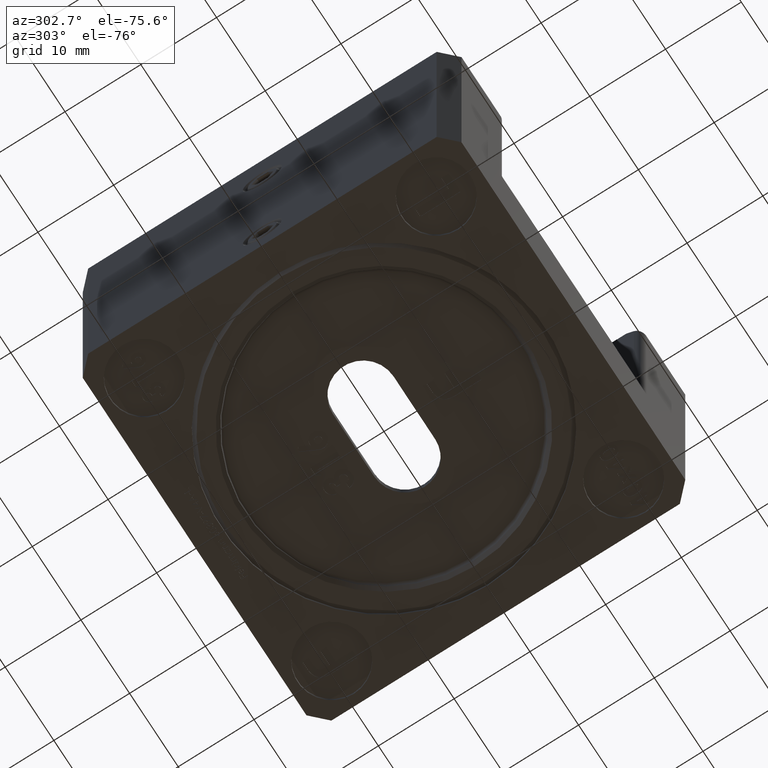
[diagram: clean part render]
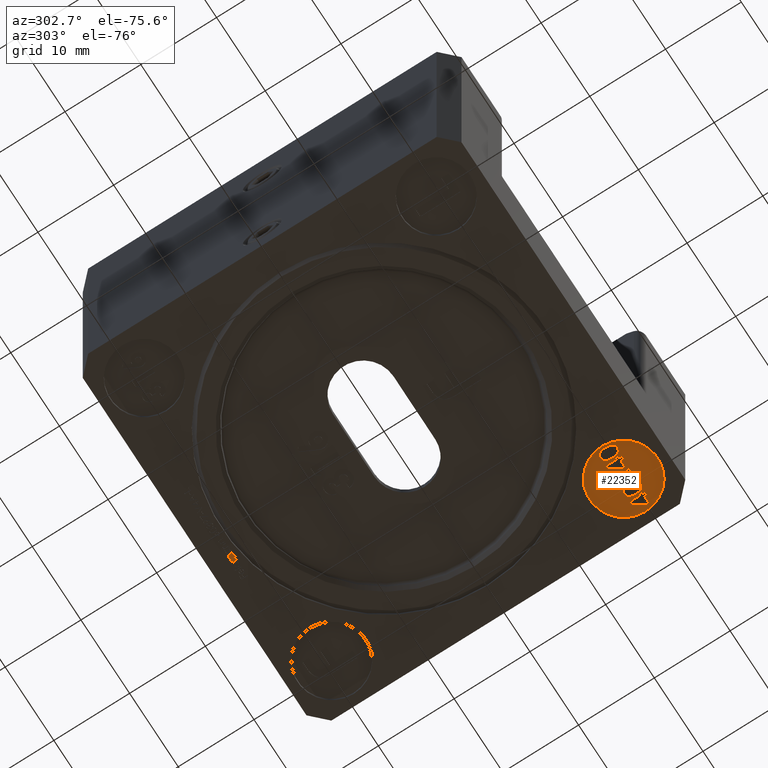
[diagram: same view with one face highlighted and labeled with its STEP entity id]
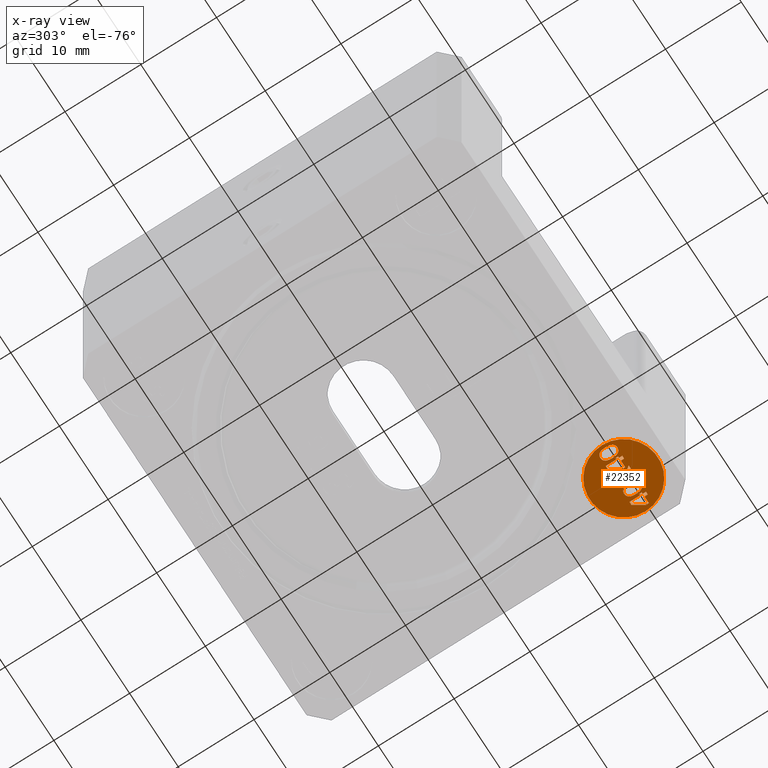
[diagram: x-ray of the same camera — body ghosted, the highlighted face saturated]
A machine part, auxiliary view. The second image highlights one B-rep face of the part: STEP entity #22352.
The next image is the same camera in x-ray: the body ghosted, the highlighted face saturated — about 0% of this face is hidden behind the body in this view.
In plain terms, the highlighted planar face has unit normal (0, 0, 1).
Its self-contained STEP definition (entity closure, byte-faithful):
#5 = EDGE_CURVE ( 'NONE', #15874, #13389, #23402, .T. ) ;
#10 = DIRECTION ( 'NONE',  ( -1.000000000000000000, 0.0000000000000000000, 0.0000000000000000000 ) ) ;
#45 = EDGE_CURVE ( 'NONE', #19678, #11450, #12199, .T. ) ;
#110 = LINE ( 'NONE', #23233, #15642 ) ;
#175 = ORIENTED_EDGE ( 'NONE', *, *, #7692, .T. ) ;
#193 = DIRECTION ( 'NONE',  ( 0.0000000000000000000, -0.0000000000000000000, 1.000000000000000000 ) ) ;
#261 = CARTESIAN_POINT ( 'NONE',  ( 15.52910355641901500, -20.46322539094386500, -19.49999999999999600 ) ) ;
#303 = CARTESIAN_POINT ( 'NONE',  ( 21.24240997873373300, -18.50919335267314000, -19.49999999999999600 ) ) ;
#325 = CARTESIAN_POINT ( 'NONE',  ( 21.47896937287810500, -18.98094877751632800, -19.50000000000000700 ) ) ;
#345 = CARTESIAN_POINT ( 'NONE',  ( 15.28710693920035100, -20.11703400478227600, -19.50000000000000000 ) ) ;
#375 = EDGE_CURVE ( 'NONE', #1966, #18803, #14157, .T. ) ;
#400 = FACE_BOUND ( 'NONE', #1970, .T. ) ;
#419 = ORIENTED_EDGE ( 'NONE', *, *, #21974, .T. ) ;
#491 = CARTESIAN_POINT ( 'NONE',  ( 20.08335727802703700, -19.56184725141307400, -19.49999999999999300 ) ) ;
#543 = VERTEX_POINT ( 'NONE', #17945 ) ;
#593 = ORIENTED_EDGE ( 'NONE', *, *, #45, .T. ) ;
#639 = DIRECTION ( 'NONE',  ( 1.000000000000000000, 0.0000000000000000000, 0.0000000000000000000 ) ) ;
#640 = LINE ( 'NONE', #8239, #20701 ) ;
#751 = EDGE_CURVE ( 'NONE', #8232, #26117, #11863, .T. ) ;
#958 = DIRECTION ( 'NONE',  ( 0.5854434189713906300, -0.8107132681676603200, 0.0000000000000000000 ) ) ;
#994 = CARTESIAN_POINT ( 'NONE',  ( 16.07503073512302500, -20.55778421158914100, -19.50000000000000000 ) ) ;
#1134 = DIRECTION ( 'NONE',  ( 0.5871477628563347400, 0.8094797740356464200, 0.0000000000000000000 ) ) ;
#1182 = CARTESIAN_POINT ( 'NONE',  ( 21.38413446056864200, -20.23077924696335500, -19.50000000000000000 ) ) ;
#1195 = EDGE_LOOP ( 'NONE', ( #17175, #2738, #18042, #15343, #1265 ) ) ;
#1225 = VECTOR ( 'NONE', #15415, 1000.000000000000000 ) ;
#1265 = ORIENTED_EDGE ( 'NONE', *, *, #21322, .T. ) ;
#1300 = CARTESIAN_POINT ( 'NONE',  ( 20.27735147361582000, -18.60565923297978200, -19.50000000000000700 ) ) ;
#1336 = CARTESIAN_POINT ( 'NONE',  ( 16.63639483006850400, -19.48110302985475100, -19.50000000000000000 ) ) ;
#1354 = CARTESIAN_POINT ( 'NONE',  ( 16.33972850136605700, -20.43295262523233200, -19.50000000000000400 ) ) ;
#1368 = LINE ( 'NONE', #8075, #11763 ) ;
#1423 = CARTESIAN_POINT ( 'NONE',  ( 16.44611498890099100, -18.61272788401655000, -19.50000000000000000 ) ) ;
#1425 = LINE ( 'NONE', #15846, #5661 ) ;
#1577 = EDGE_CURVE ( 'NONE', #13566, #14762, #8308, .T. ) ;
#1578 = CARTESIAN_POINT ( 'NONE',  ( 20.13179801612807300, -18.93949156992432800, -19.49999999999999600 ) ) ;
#1666 = VECTOR ( 'NONE', #12723, 1000.000000000000100 ) ;
#1847 = EDGE_CURVE ( 'NONE', #18803, #19678, #5714, .T. ) ;
#1880 = VERTEX_POINT ( 'NONE', #24456 ) ;
#1900 = EDGE_CURVE ( 'NONE', #26128, #7818, #5998, .T. ) ;
#1966 = VERTEX_POINT ( 'NONE', #2173 ) ;
#1970 = EDGE_LOOP ( 'NONE', ( #23081, #19459, #17067, #3975, #26082, #15213, #13651, #6506, #13895, #16426, #22318, #8326 ) ) ;
#2011 = EDGE_CURVE ( 'NONE', #16760, #11055, #8236, .T. ) ;
#2086 = ORIENTED_EDGE ( 'NONE', *, *, #17810, .T. ) ;
#2106 = ORIENTED_EDGE ( 'NONE', *, *, #22862, .T. ) ;
#2136 = CARTESIAN_POINT ( 'NONE',  ( 18.29173671041038700, -19.69989309395731800, -19.50000000000000000 ) ) ;
#2173 = CARTESIAN_POINT ( 'NONE',  ( 20.08276235143602100, -19.46117447750432600, -19.50000000000000000 ) ) ;
#2194 = EDGE_CURVE ( 'NONE', #8599, #1880, #25334, .T. ) ;
#2200 = AXIS2_PLACEMENT_3D ( 'NONE', #20542, #193, #14669 ) ;
#2345 = CARTESIAN_POINT ( 'NONE',  ( 15.42377719439625700, -20.36246280700410300, -19.50000000000000400 ) ) ;
#2352 = LINE ( 'NONE', #25166, #23005 ) ;
#2369 = CARTESIAN_POINT ( 'NONE',  ( 17.01630935998303700, -20.08447175314535100, -19.50000000000000000 ) ) ;
#2386 = EDGE_CURVE ( 'NONE', #7511, #10082, #4989, .T. ) ;
#2415 = CARTESIAN_POINT ( 'NONE',  ( 17.01630935998303700, -20.51865978733338400, -19.50000000000000000 ) ) ;
#2431 = CARTESIAN_POINT ( 'NONE',  ( 15.80236314100839600, -20.56694489684956700, -19.50000000000000000 ) ) ;
#2507 = CARTESIAN_POINT ( 'NONE',  ( 21.36129998182570200, -18.65892949933821000, -19.50000000000000400 ) ) ;
#2540 = DIRECTION ( 'NONE',  ( 1.000000000000000000, 0.0000000000000000000, 0.0000000000000000000 ) ) ;
#2549 = ORIENTED_EDGE ( 'NONE', *, *, #16834, .T. ) ;
#2576 = DIRECTION ( 'NONE',  ( 0.0000000000000000000, -1.000000000000000000, 0.0000000000000000000 ) ) ;
#2580 = CARTESIAN_POINT ( 'NONE',  ( 20.09487665737982800, -19.74949818848065400, -19.49999999999999600 ) ) ;
#2601 = CARTESIAN_POINT ( 'NONE',  ( 18.77468609609414000, -20.51865978733338000, -19.50000000000000000 ) ) ;
#2738 = ORIENTED_EDGE ( 'NONE', *, *, #3068, .T. ) ;
#2862 = LINE ( 'NONE', #11278, #11626 ) ;
#2871 = CARTESIAN_POINT ( 'NONE',  ( 16.63639483006850400, -19.48110302985475100, -19.50000000000000000 ) ) ;
#2895 = CIRCLE ( 'NONE', #21420, 4.500000000000000900 ) ;
#2944 = CARTESIAN_POINT ( 'NONE',  ( 20.22057979208317100, -20.22704167294330400, -19.49999999999999600 ) ) ;
#2975 = VECTOR ( 'NONE', #10273, 1000.000000000000000 ) ;
#2983 = VECTOR ( 'NONE', #13410, 1000.000000000000000 ) ;
#3011 = FACE_OUTER_BOUND ( 'NONE', #12757, .T. ) ;
#3030 = CARTESIAN_POINT ( 'NONE',  ( 20.58584862693198000, -20.54632261778430200, -19.50000000000000000 ) ) ;
#3046 = CARTESIAN_POINT ( 'NONE',  ( 19.37593476062405200, -19.68971681190603100, -19.50000000000000000 ) ) ;
#3068 = EDGE_CURVE ( 'NONE', #1880, #16760, #4046, .T. ) ;
#3093 = CARTESIAN_POINT ( 'NONE',  ( 16.56917997216510200, -20.06414337582947000, -19.50000000000000000 ) ) ;
#3123 = CARTESIAN_POINT ( 'NONE',  ( 20.79722215378645000, -20.57293329160689100, -19.50000000000000000 ) ) ;
#3202 = CARTESIAN_POINT ( 'NONE',  ( 20.68697852562377500, -20.56694489684956700, -19.50000000000000000 ) ) ;
#3264 = CARTESIAN_POINT ( 'NONE',  ( 16.47195787137613700, -20.27842571724331600, -19.50000000000000000 ) ) ;
#3267 = VECTOR ( 'NONE', #639, 1000.000000000000000 ) ;
#3305 = EDGE_CURVE ( 'NONE', #16575, #24175, #110, .T. ) ;
#3332 = CARTESIAN_POINT ( 'NONE',  ( 16.23164557394070700, -18.41831360031966400, -19.50000000000000400 ) ) ;
#3358 = CARTESIAN_POINT ( 'NONE',  ( 16.02313648151300600, -20.56698238870416900, -19.50000000000000400 ) ) ;
#3363 = CARTESIAN_POINT ( 'NONE',  ( 21.40939803564531000, -20.17941704777196700, -19.50000000000000000 ) ) ;
#3382 = CARTESIAN_POINT ( 'NONE',  ( 21.34716539630781500, -18.63562359609406700, -19.50000000000000000 ) ) ;
#3414 = CARTESIAN_POINT ( 'NONE',  ( 15.92363107472662500, -18.34771961639321300, -19.50000000000000000 ) ) ;
#3432 = CARTESIAN_POINT ( 'NONE',  ( 19.16223283754713000, -19.39333259716244100, -19.50000000000000000 ) ) ;
#3443 = CARTESIAN_POINT ( 'NONE',  ( 16.52478265102993000, -20.17941704777196700, -19.50000000000000000 ) ) ;
#3570 = CARTESIAN_POINT ( 'NONE',  ( 20.64914468513039500, -18.36312624442890500, -19.50000000000000400 ) ) ;
#3606 = CARTESIAN_POINT ( 'NONE',  ( 15.92363107472662500, -18.34771961639321300, -19.50000000000000000 ) ) ;
#3676 = CARTESIAN_POINT ( 'NONE',  ( 20.21928028386401300, -18.70030822879435200, -19.50000000000000400 ) ) ;
#3727 = CARTESIAN_POINT ( 'NONE',  ( 17.39622388989756600, -20.08447175314535100, -19.50000000000000000 ) ) ;
#3759 = CARTESIAN_POINT ( 'NONE',  ( 20.17035098681002500, -18.81031918212441700, -19.50000000000000400 ) ) ;
#3792 = CARTESIAN_POINT ( 'NONE',  ( 15.19833401722315000, -19.42738942355059400, -19.49999999999999600 ) ) ;
#3975 = ORIENTED_EDGE ( 'NONE', *, *, #11671, .T. ) ;
#3984 = VECTOR ( 'NONE', #22603, 1000.000000000000000 ) ;
#4046 = B_SPLINE_CURVE_WITH_KNOTS ( 'NONE', 3,
 ( #3606, #11958, #5801, #14275, #26404, #24247, #16182, #18436, #26321, #22193, #10055, #5711, #7819, #8105, #18353, #6076, #16451, #7916, #18264, #9877, #12145, #14017, #12322, #24517, #22373, #3792, #24611 ),
 .UNSPECIFIED., .F., .F.,
 ( 4, 1, 1, 1, 1, 1, 1, 1, 1, 1, 1, 1, 1, 1, 1, 1, 1, 1, 1, 1, 1, 1, 1, 1, 4 ),
 ( 0.0000000000000000000, 0.03663489025512752700, 0.07203398234779112600, 0.1066259706074960400, 0.1403056939382987300, 0.1736194704926825600, 0.2064256725696826400, 0.2390670061327428400, 0.2718828805625953000, 0.3048398888131207400, 0.3385290337045881400, 0.3726161878593857700, 0.4075482500265407100, 0.4437189059571700600, 0.4813115090919059500, 0.5201129981462014900, 0.5609129028334468600, 0.6040246006136030800, 0.6500745638656786300, 0.6995722277770585200, 0.7523625390892957300, 0.8087887173463876900, 0.8689542125204782200, 0.9326747199379369400, 1.000000000000000000 ),
 .UNSPECIFIED. ) ;
#4132 = VERTEX_POINT ( 'NONE', #3432 ) ;
#4177 = VECTOR ( 'NONE', #2576, 1000.000000000000000 ) ;
#4258 = EDGE_CURVE ( 'NONE', #21731, #26486, #5259, .T. ) ;
#4303 = CARTESIAN_POINT ( 'NONE',  ( 21.33073037351637400, -18.61272788401655000, -19.50000000000000000 ) ) ;
#4396 = CARTESIAN_POINT ( 'NONE',  ( 18.42911651810268500, -18.97186491553850700, -19.50000000000000000 ) ) ;
#4433 = CARTESIAN_POINT ( 'NONE',  ( 15.65462220914446200, -20.53030551133063100, -19.49999999999999300 ) ) ;
#4474 = CARTESIAN_POINT ( 'NONE',  ( 21.18204469923791300, -18.45893130931585400, -19.50000000000000400 ) ) ;
#4497 = CARTESIAN_POINT ( 'NONE',  ( 21.45534389130699900, -18.87979840817180100, -19.49999999999999600 ) ) ;
#4610 = CARTESIAN_POINT ( 'NONE',  ( 15.75074245111624700, -20.55782117198042900, -19.49999999999999300 ) ) ;
#4726 = VERTEX_POINT ( 'NONE', #18423 ) ;
#4754 = CARTESIAN_POINT ( 'NONE',  ( 18.94725887921379500, -19.68971681190603100, -19.50000000000000000 ) ) ;
#4836 = CARTESIAN_POINT ( 'NONE',  ( 20.97095691066363400, -18.36365924632036000, -19.50000000000000700 ) ) ;
#4881 = CARTESIAN_POINT ( 'NONE',  ( 21.71096747964115500, -19.73169397536757300, -19.50000000000000000 ) ) ;
#4884 = LINE ( 'NONE', #19342, #3267 ) ;
#4939 = VECTOR ( 'NONE', #11354, 1000.000000000000000 ) ;
#4944 = CARTESIAN_POINT ( 'NONE',  ( 20.63535783573162500, -20.55782117198042900, -19.49999999999999300 ) ) ;
#4956 = CARTESIAN_POINT ( 'NONE',  ( 16.54047484735147900, -18.78900798796350800, -19.50000000000001100 ) ) ;
#4961 = FACE_BOUND ( 'NONE', #1195, .T. ) ;
#4989 = LINE ( 'NONE', #18164, #23032 ) ;
#5030 = CARTESIAN_POINT ( 'NONE',  ( 20.13220181144519200, -19.98727467935451300, -19.50000000000000700 ) ) ;
#5047 = CARTESIAN_POINT ( 'NONE',  ( 16.50603325697011300, -18.70732122782869000, -19.50000000000000000 ) ) ;
#5180 = CARTESIAN_POINT ( 'NONE',  ( 16.60259754530540400, -19.92681335926688000, -19.50000000000000400 ) ) ;
#5185 = CARTESIAN_POINT ( 'NONE',  ( 21.48721292992078700, -19.92681335926688000, -19.50000000000000400 ) ) ;
#5257 = EDGE_CURVE ( 'NONE', #14433, #21731, #14276, .T. ) ;
#5259 = LINE ( 'NONE', #14632, #10758 ) ;
#5260 = EDGE_CURVE ( 'NONE', #543, #4726, #4884, .T. ) ;
#5362 = CARTESIAN_POINT ( 'NONE',  ( 16.63619472656739600, -19.51488707244364200, -19.49999999999999600 ) ) ;
#5397 = CARTESIAN_POINT ( 'NONE',  ( 19.46794531083772700, -18.97186491553850700, -19.50000000000000000 ) ) ;
#5452 = CARTESIAN_POINT ( 'NONE',  ( 21.22434388598144000, -20.43295262523233200, -19.50000000000000400 ) ) ;
#5476 = CARTESIAN_POINT ( 'NONE',  ( 22.28083927451295000, -20.51865978733338400, -19.50000000000000000 ) ) ;
#5539 = CARTESIAN_POINT ( 'NONE',  ( 16.41030347211042100, -20.36286423021478200, -19.50000000000000000 ) ) ;
#5556 = CARTESIAN_POINT ( 'NONE',  ( 19.54553946147875000, -20.51865978733338000, -19.50000000000000000 ) ) ;
#5559 = EDGE_CURVE ( 'NONE', #16663, #15442, #12372, .T. ) ;
#5599 = LINE ( 'NONE', #13156, #4939 ) ;
#5649 = DIRECTION ( 'NONE',  ( 0.0000000000000000000, 1.000000000000000000, 0.0000000000000000000 ) ) ;
#5661 = VECTOR ( 'NONE', #5649, 1000.000000000000000 ) ;
#5711 = CARTESIAN_POINT ( 'NONE',  ( 15.46001039668335000, -18.52591422915676100, -19.49999999999999600 ) ) ;
#5714 = B_SPLINE_CURVE_WITH_KNOTS ( 'NONE', 3,
 ( #25300, #20832, #22874, #25115, #21003, #12815, #17829, #13571, #23649, #9276, #5452, #9634, #11530, #17646, #9450, #1182, #3363, #21764, #25710, #21941, #5185, #15660, #7193, #13398, #9540, #19807, #7566 ),
 .UNSPECIFIED., .F., .F.,
 ( 4, 1, 1, 1, 1, 1, 1, 1, 1, 1, 1, 1, 1, 1, 1, 1, 1, 1, 1, 1, 1, 1, 1, 1, 4 ),
 ( 0.0000000000000000000, 0.03821733796913519300, 0.07486720303994302800, 0.1101580815531043300, 0.1444539266593000700, 0.1780797262741529700, 0.2111707725935971800, 0.2436870542144166400, 0.2758717334447985400, 0.3083755160139861600, 0.3412633249363568600, 0.3751503394709042600, 0.4096552607042124300, 0.4451573674923567900, 0.4820734672046710900, 0.5205757562184270000, 0.5605536808978380800, 0.6031075754382523300, 0.6486887095294884300, 0.6979476778875610700, 0.7507677670183529100, 0.8073094024459638300, 0.8676555707911404200, 0.9318612220995568000, 1.000000000000000000 ),
 .UNSPECIFIED. ) ;
#5801 = CARTESIAN_POINT ( 'NONE',  ( 15.86908308212929200, -18.34852939672076000, -19.49999999999999600 ) ) ;
#5855 = CARTESIAN_POINT ( 'NONE',  ( 20.08331348747283900, -19.36162825632897000, -19.50000000000000400 ) ) ;
#5998 = LINE ( 'NONE', #11979, #10836 ) ;
#6009 = VERTEX_POINT ( 'NONE', #20280 ) ;
#6076 = CARTESIAN_POINT ( 'NONE',  ( 15.33466489924862200, -18.70030822879434900, -19.50000000000000000 ) ) ;
#6109 = EDGE_CURVE ( 'NONE', #24175, #16663, #640, .T. ) ;
#6185 = CARTESIAN_POINT ( 'NONE',  ( 15.21026127276445700, -19.74949818848066100, -19.50000000000000400 ) ) ;
#6229 = VERTEX_POINT ( 'NONE', #2369 ) ;
#6304 = CARTESIAN_POINT ( 'NONE',  ( 22.28083927451295000, -20.51865978733338400, -19.50000000000000000 ) ) ;
#6311 = ORIENTED_EDGE ( 'NONE', *, *, #25459, .T. ) ;
#6506 = ORIENTED_EDGE ( 'NONE', *, *, #6109, .T. ) ;
#6614 = CARTESIAN_POINT ( 'NONE',  ( 15.85667809916218100, -20.57198722683196800, -19.50000000000000400 ) ) ;
#6687 = CARTESIAN_POINT ( 'NONE',  ( 21.34716539630781500, -18.63562359609406700, -19.50000000000000000 ) ) ;
#6692 = CARTESIAN_POINT ( 'NONE',  ( 16.82635209502577200, -19.73169397536757300, -19.50000000000000000 ) ) ;
#6695 = B_SPLINE_CURVE_WITH_KNOTS ( 'NONE', 3,
 ( #8503, #4303, #18757, #303, #4474, #20819, #8591, #4836, #21343, #6759, #17308 ),
 .UNSPECIFIED., .F., .F.,
 ( 4, 1, 1, 1, 1, 1, 1, 1, 4 ),
 ( 0.0000000000000000000, 0.1323140339085603900, 0.2587000085531520100, 0.3809118214856523900, 0.5005348689728953400, 0.6209226176484489200, 0.7423757653984722800, 0.8682808341788571500, 1.000000000000000000 ),
 .UNSPECIFIED. ) ;
#6759 = CARTESIAN_POINT ( 'NONE',  ( 20.83628068958659100, -18.34865277449925400, -19.50000000000000000 ) ) ;
#6835 = EDGE_CURVE ( 'NONE', #15442, #10561, #8429, .T. ) ;
#6847 = VECTOR ( 'NONE', #22981, 1000.000000000000100 ) ;
#6869 = CARTESIAN_POINT ( 'NONE',  ( 16.63533297308611100, -19.34359091133031300, -19.50000000000000400 ) ) ;
#7054 = LINE ( 'NONE', #13342, #21550 ) ;
#7088 = DIRECTION ( 'NONE',  ( -0.5871543818214730600, -0.8094749729965984300, 0.0000000000000000000 ) ) ;
#7171 = EDGE_CURVE ( 'NONE', #13268, #7886, #15167, .T. ) ;
#7193 = CARTESIAN_POINT ( 'NONE',  ( 21.50897815168641700, -19.76548248649768500, -19.50000000000000000 ) ) ;
#7202 = B_SPLINE_CURVE_WITH_KNOTS ( 'NONE', 3,
 ( #2871, #25582, #6869, #8960, #17324, #17409, #15153, #4956, #5047, #17051, #19388 ),
 .UNSPECIFIED., .F., .F.,
 ( 4, 1, 1, 1, 1, 1, 1, 1, 4 ),
 ( 0.0000000000000000000, 0.1610711239484187700, 0.3107888083803530500, 0.4499038238309436300, 0.5783763165061841500, 0.6966172119048382700, 0.8059873227104081800, 0.9065617032890784800, 1.000000000000000000 ),
 .UNSPECIFIED. ) ;
#7287 = CARTESIAN_POINT ( 'NONE',  ( 16.63639483006850400, -19.48110302985475100, -19.50000000000000000 ) ) ;
#7346 = CARTESIAN_POINT ( 'NONE',  ( 15.95166530497121100, -18.34865277449925400, -19.50000000000000000 ) ) ;
#7460 = CARTESIAN_POINT ( 'NONE',  ( 16.61470009685280800, -19.84908339796789500, -19.49999999999999600 ) ) ;
#7469 = DIRECTION ( 'NONE',  ( -0.5855501041067087100, 0.8106362165488429900, 0.0000000000000000000 ) ) ;
#7511 = VERTEX_POINT ( 'NONE', #3727 ) ;
#7566 = CARTESIAN_POINT ( 'NONE',  ( 21.52101021468388400, -19.48110302985475100, -19.50000000000000000 ) ) ;
#7594 = LINE ( 'NONE', #17106, #18252 ) ;
#7611 = CARTESIAN_POINT ( 'NONE',  ( 21.90092474459842000, -19.73169397536757300, -19.50000000000000000 ) ) ;
#7622 = CARTESIAN_POINT ( 'NONE',  ( 16.35779459411835300, -18.50919335267314000, -19.49999999999999600 ) ) ;
#7625 = VERTEX_POINT ( 'NONE', #15050 ) ;
#7651 = CARTESIAN_POINT ( 'NONE',  ( 16.63155068308715600, -19.67597027311170500, -19.50000000000000000 ) ) ;
#7652 = DIRECTION ( 'NONE',  ( -0.0000000000000000000, 0.0000000000000000000, -1.000000000000000000 ) ) ;
#7692 = EDGE_CURVE ( 'NONE', #13389, #7511, #2862, .T. ) ;
#7693 = CARTESIAN_POINT ( 'NONE',  ( 20.42154731988608800, -18.46128353155489100, -19.50000000000000000 ) ) ;
#7818 = VERTEX_POINT ( 'NONE', #5397 ) ;
#7819 = CARTESIAN_POINT ( 'NONE',  ( 15.42496756402360500, -18.56378178914650000, -19.50000000000000000 ) ) ;
#7886 = VERTEX_POINT ( 'NONE', #8019 ) ;
#7905 = DIRECTION ( 'NONE',  ( 1.000000000000000000, 0.0000000000000000000, 0.0000000000000000000 ) ) ;
#7916 = CARTESIAN_POINT ( 'NONE',  ( 15.28573560219464900, -18.81031918212441700, -19.50000000000000400 ) ) ;
#7922 = FACE_BOUND ( 'NONE', #21383, .T. ) ;
#7971 = CARTESIAN_POINT ( 'NONE',  ( 20.10392009715020800, -19.09103453800539900, -19.50000000000000000 ) ) ;
#8019 = CARTESIAN_POINT ( 'NONE',  ( 17.01630935998303700, -19.73169397536757300, -19.50000000000000000 ) ) ;
#8075 = CARTESIAN_POINT ( 'NONE',  ( 16.82635209502577200, -20.08447175314535100, -19.50000000000000000 ) ) ;
#8105 = CARTESIAN_POINT ( 'NONE',  ( 15.39273608900043300, -18.60565923297978200, -19.50000000000000400 ) ) ;
#8141 = CARTESIAN_POINT ( 'NONE',  ( 17.01630935998303700, -20.08447175314535100, -19.50000000000000000 ) ) ;
#8164 = VECTOR ( 'NONE', #16751, 1000.000000000000000 ) ;
#8212 = CARTESIAN_POINT ( 'NONE',  ( 18.34601021468388300, -20.51865978733338000, -19.50000000000000000 ) ) ;
#8232 = VERTEX_POINT ( 'NONE', #2136 ) ;
#8236 = B_SPLINE_CURVE_WITH_KNOTS ( 'NONE', 3,
 ( #10172, #26693, #16472, #18550, #6185, #20614, #8711, #14820, #10953, #345, #24974, #12674, #14909, #16980, #2345, #22904, #19051, #261, #12845, #16894, #4433, #16805, #4610, #2431, #6614, #10601, #19150 ),
 .UNSPECIFIED., .F., .F.,
 ( 4, 1, 1, 1, 1, 1, 1, 1, 1, 1, 1, 1, 1, 1, 1, 1, 1, 1, 1, 1, 1, 1, 1, 1, 4 ),
 ( 0.0000000000000000000, 0.06849087449695245900, 0.1330765404908772200, 0.1938289871915752600, 0.2510828574460490800, 0.3044008371534403500, 0.3544083437255261000, 0.4012947817777441900, 0.4447006845454761800, 0.4856924920892440300, 0.5246764844274028900, 0.5623067591777574100, 0.5979465846525333600, 0.6324735490267251500, 0.6657520428969359000, 0.6979852995504430800, 0.7295862241486798000, 0.7608251968744872400, 0.7923550795612048800, 0.8243126039626619300, 0.8571562719790673000, 0.8909268871454043600, 0.9259604429162998600, 0.9620613229943363300, 1.000000000000000000 ),
 .UNSPECIFIED. ) ;
#8239 = CARTESIAN_POINT ( 'NONE',  ( 18.34601021468388300, -20.51865978733338000, -19.50000000000000000 ) ) ;
#8291 = LINE ( 'NONE', #11166, #16641 ) ;
#8308 = LINE ( 'NONE', #22186, #11834 ) ;
#8326 = ORIENTED_EDGE ( 'NONE', *, *, #1577, .T. ) ;
#8398 = CARTESIAN_POINT ( 'NONE',  ( 17.41233633647876300, -18.34771961639321300, -19.50000000000000000 ) ) ;
#8429 = LINE ( 'NONE', #15621, #11304 ) ;
#8503 = CARTESIAN_POINT ( 'NONE',  ( 21.34716539630781500, -18.63562359609406700, -19.50000000000000000 ) ) ;
#8510 = ORIENTED_EDGE ( 'NONE', *, *, #751, .T. ) ;
#8591 = CARTESIAN_POINT ( 'NONE',  ( 21.04609915395085900, -18.38628247170748200, -19.49999999999999600 ) ) ;
#8599 = VERTEX_POINT ( 'NONE', #11975 ) ;
#8711 = CARTESIAN_POINT ( 'NONE',  ( 15.23251929380109500, -19.91376198091161600, -19.50000000000000400 ) ) ;
#8729 = CARTESIAN_POINT ( 'NONE',  ( 18.29173671041038700, -20.08447175314535100, -19.50000000000000000 ) ) ;
#8784 = CARTESIAN_POINT ( 'NONE',  ( 21.52101021468388400, -19.48110302985475100, -19.50000000000000000 ) ) ;
#8960 = CARTESIAN_POINT ( 'NONE',  ( 16.62646981221145700, -19.21274092039250900, -19.50000000000000000 ) ) ;
#9149 = CARTESIAN_POINT ( 'NONE',  ( 20.80824645934200500, -18.34771961639321300, -19.50000000000000000 ) ) ;
#9276 = CARTESIAN_POINT ( 'NONE',  ( 21.18618311309760200, -20.46279102054090200, -19.49999999999999600 ) ) ;
#9443 = ORIENTED_EDGE ( 'NONE', *, *, #18444, .T. ) ;
#9450 = CARTESIAN_POINT ( 'NONE',  ( 21.35657325599152400, -20.27842571724331600, -19.50000000000000000 ) ) ;
#9540 = CARTESIAN_POINT ( 'NONE',  ( 21.52042145461374600, -19.58050506517206600, -19.50000000000000000 ) ) ;
#9599 = CARTESIAN_POINT ( 'NONE',  ( 16.41398128084961900, -18.56796225534273900, -19.50000000000000000 ) ) ;
#9630 = CARTESIAN_POINT ( 'NONE',  ( 15.96867465032483400, -20.57196655152771200, -19.50000000000000400 ) ) ;
#9634 = CARTESIAN_POINT ( 'NONE',  ( 21.26061587911202000, -20.39961552813311500, -19.50000000000000000 ) ) ;
#9661 = ORIENTED_EDGE ( 'NONE', *, *, #4258, .T. ) ;
#9871 = VERTEX_POINT ( 'NONE', #5476 ) ;
#9877 = CARTESIAN_POINT ( 'NONE',  ( 15.24718263151269300, -18.93949156992433200, -19.50000000000000000 ) ) ;
#10020 = CARTESIAN_POINT ( 'NONE',  ( 20.14942442944590400, -18.87213750552712800, -19.49999999999999600 ) ) ;
#10055 = CARTESIAN_POINT ( 'NONE',  ( 15.49710603868750300, -18.49148406344832200, -19.49999999999999600 ) ) ;
#10082 = VERTEX_POINT ( 'NONE', #8729 ) ;
#10151 = FACE_BOUND ( 'NONE', #19658, .T. ) ;
#10172 = CARTESIAN_POINT ( 'NONE',  ( 15.19814696682064100, -19.46117447750432600, -19.50000000000000000 ) ) ;
#10175 = CARTESIAN_POINT ( 'NONE',  ( 21.52101021468388400, -19.48110302985475100, -19.50000000000000000 ) ) ;
#10222 = CARTESIAN_POINT ( 'NONE',  ( 20.78985701925143600, -18.34799261281546400, -19.50000000000000000 ) ) ;
#10273 = DIRECTION ( 'NONE',  ( 1.000000000000000000, 0.0000000000000000000, 0.0000000000000000000 ) ) ;
#10412 = LINE ( 'NONE', #4396, #1666 ) ;
#10528 = CARTESIAN_POINT ( 'NONE',  ( 21.71096747964115500, -20.08447175314535100, -19.50000000000000000 ) ) ;
#10552 = CARTESIAN_POINT ( 'NONE',  ( 21.90092474459842000, -18.34771961639321300, -19.50000000000000000 ) ) ;
#10561 = VERTEX_POINT ( 'NONE', #14954 ) ;
#10601 = CARTESIAN_POINT ( 'NONE',  ( 15.89365791036757800, -20.57261276104829800, -19.50000000000000000 ) ) ;
#10752 = DIRECTION ( 'NONE',  ( -0.5871371858102859600, -0.8094874458808967200, 0.0000000000000000000 ) ) ;
#10758 = VECTOR ( 'NONE', #20684, 1000.000000000000000 ) ;
#10795 = ORIENTED_EDGE ( 'NONE', *, *, #1847, .T. ) ;
#10826 = CARTESIAN_POINT ( 'NONE',  ( 17.01630935998303700, -18.34771961639321300, -19.50000000000000000 ) ) ;
#10836 = VECTOR ( 'NONE', #10, 1000.000000000000000 ) ;
#10953 = CARTESIAN_POINT ( 'NONE',  ( 15.26549106775254600, -20.05508294947368600, -19.50000000000000000 ) ) ;
#11055 = VERTEX_POINT ( 'NONE', #21935 ) ;
#11155 = ORIENTED_EDGE ( 'NONE', *, *, #22780, .T. ) ;
#11163 = EDGE_CURVE ( 'NONE', #11055, #13287, #21909, .T. ) ;
#11166 = CARTESIAN_POINT ( 'NONE',  ( 19.16223283754713000, -19.39333259716244100, -19.50000000000000000 ) ) ;
#11194 = CARTESIAN_POINT ( 'NONE',  ( 21.71096747964115500, -20.08447175314535100, -19.50000000000000000 ) ) ;
#11275 = CARTESIAN_POINT ( 'NONE',  ( 20.27681177241575800, -20.32151342089661500, -19.49999999999999600 ) ) ;
#11278 = CARTESIAN_POINT ( 'NONE',  ( 17.39622388989756600, -20.51865978733338400, -19.50000000000000000 ) ) ;
#11304 = VECTOR ( 'NONE', #958, 1000.000000000000100 ) ;
#11354 = DIRECTION ( 'NONE',  ( 0.0000000000000000000, -1.000000000000000000, 0.0000000000000000000 ) ) ;
#11369 = DIRECTION ( 'NONE',  ( 0.0000000000000000000, 1.000000000000000000, 0.0000000000000000000 ) ) ;
#11450 = VERTEX_POINT ( 'NONE', #3382 ) ;
#11457 = CARTESIAN_POINT ( 'NONE',  ( 20.49473024169984800, -20.51188968001916300, -19.50000000000000400 ) ) ;
#11530 = CARTESIAN_POINT ( 'NONE',  ( 21.29491885672580100, -20.36286423021478200, -19.50000000000000000 ) ) ;
#11611 = CARTESIAN_POINT ( 'NONE',  ( 16.17249189768004000, -20.53034095078207600, -19.49999999999999300 ) ) ;
#11626 = VECTOR ( 'NONE', #11369, 1000.000000000000000 ) ;
#11653 = CARTESIAN_POINT ( 'NONE',  ( 20.09427535755483500, -19.17550944218055900, -19.50000000000000000 ) ) ;
#11657 = DIRECTION ( 'NONE',  ( -1.000000000000000000, 0.0000000000000000000, 0.0000000000000000000 ) ) ;
#11671 = EDGE_CURVE ( 'NONE', #4132, #6009, #8291, .T. ) ;
#11744 = CARTESIAN_POINT ( 'NONE',  ( 20.50650229015715500, -18.41099187773811300, -19.50000000000000000 ) ) ;
#11763 = VECTOR ( 'NONE', #14426, 1000.000000000000000 ) ;
#11773 = EDGE_CURVE ( 'NONE', #4726, #17477, #1425, .T. ) ;
#11776 = ORIENTED_EDGE ( 'NONE', *, *, #15185, .T. ) ;
#11834 = VECTOR ( 'NONE', #22098, 1000.000000000000100 ) ;
#11863 = LINE ( 'NONE', #24911, #20860 ) ;
#11918 = VERTEX_POINT ( 'NONE', #22662 ) ;
#11924 = CARTESIAN_POINT ( 'NONE',  ( 20.46314628349593800, -18.43460795706215500, -19.50000000000000400 ) ) ;
#11958 = CARTESIAN_POINT ( 'NONE',  ( 15.90524163463605900, -18.34799261281546400, -19.49999999999999600 ) ) ;
#11975 = CARTESIAN_POINT ( 'NONE',  ( 16.46255001169243600, -18.63562359609406700, -19.50000000000000000 ) ) ;
#11979 = CARTESIAN_POINT ( 'NONE',  ( 19.89662119224798400, -18.97186491553850700, -19.50000000000000000 ) ) ;
#12089 = VERTEX_POINT ( 'NONE', #4881 ) ;
#12145 = CARTESIAN_POINT ( 'NONE',  ( 15.23206503264818000, -19.01239675669823700, -19.50000000000000400 ) ) ;
#12199 = B_SPLINE_CURVE_WITH_KNOTS ( 'NONE', 3,
 ( #8784, #14891, #22885, #24958, #12656, #325, #4497, #18955, #21016, #2507, #6687 ),
 .UNSPECIFIED., .F., .F.,
 ( 4, 1, 1, 1, 1, 1, 1, 1, 4 ),
 ( 0.0000000000000000000, 0.1610711239484187700, 0.3107888083803530500, 0.4499038238309436300, 0.5783763165061841500, 0.6966172119048382700, 0.8059873227104081800, 0.9065617032890784800, 1.000000000000000000 ),
 .UNSPECIFIED. ) ;
#12322 = CARTESIAN_POINT ( 'NONE',  ( 15.20965997293945500, -19.17550944218056200, -19.50000000000000000 ) ) ;
#12346 = ORIENTED_EDGE ( 'NONE', *, *, #5257, .T. ) ;
#12372 = LINE ( 'NONE', #2601, #6847 ) ;
#12459 = DIRECTION ( 'NONE',  ( 1.000000000000000000, 0.0000000000000000000, 0.0000000000000000000 ) ) ;
#12492 = VERTEX_POINT ( 'NONE', #11194 ) ;
#12619 = LINE ( 'NONE', #3046, #23223 ) ;
#12656 = CARTESIAN_POINT ( 'NONE',  ( 21.49807632461639200, -19.09179277031714900, -19.49999999999999600 ) ) ;
#12674 = CARTESIAN_POINT ( 'NONE',  ( 15.33596440746779900, -20.22704167294331500, -19.50000000000000400 ) ) ;
#12694 = ORIENTED_EDGE ( 'NONE', *, *, #25402, .T. ) ;
#12723 = DIRECTION ( 'NONE',  ( 0.5852632049072605800, -0.8108433763567918200, 0.0000000000000000000 ) ) ;
#12757 = EDGE_LOOP ( 'NONE', ( #2086, #12694 ) ) ;
#12787 = EDGE_CURVE ( 'NONE', #19368, #1966, #20294, .T. ) ;
#12815 = CARTESIAN_POINT ( 'NONE',  ( 21.00954702594227200, -20.54623434038820000, -19.50000000000000000 ) ) ;
#12845 = CARTESIAN_POINT ( 'NONE',  ( 15.56852247946199200, -20.48918544487185000, -19.50000000000000400 ) ) ;
#12894 = CARTESIAN_POINT ( 'NONE',  ( 20.08296450237634900, -19.49538222047439000, -19.50000000000000000 ) ) ;
#13009 = EDGE_CURVE ( 'NONE', #9871, #543, #18854, .T. ) ;
#13156 = CARTESIAN_POINT ( 'NONE',  ( 21.71096747964115500, -19.73169397536757300, -19.50000000000000000 ) ) ;
#13229 = LINE ( 'NONE', #6692, #25447 ) ;
#13233 = CARTESIAN_POINT ( 'NONE',  ( 21.90092474459842000, -20.51865978733338400, -19.50000000000000000 ) ) ;
#13250 = CARTESIAN_POINT ( 'NONE',  ( 20.74129348377755700, -20.57198722683196800, -19.50000000000000400 ) ) ;
#13268 = VERTEX_POINT ( 'NONE', #17994 ) ;
#13287 = VERTEX_POINT ( 'NONE', #1336 ) ;
#13334 = CARTESIAN_POINT ( 'NONE',  ( 20.11713467841646600, -19.91376198091160500, -19.49999999999999600 ) ) ;
#13342 = CARTESIAN_POINT ( 'NONE',  ( 21.90092474459842000, -20.08447175314535100, -19.50000000000000000 ) ) ;
#13389 = VERTEX_POINT ( 'NONE', #24613 ) ;
#13398 = CARTESIAN_POINT ( 'NONE',  ( 21.51616606770253500, -19.67597027311170500, -19.50000000000000000 ) ) ;
#13410 = DIRECTION ( 'NONE',  ( -1.000000000000000000, 0.0000000000000000000, 0.0000000000000000000 ) ) ;
#13423 = CARTESIAN_POINT ( 'NONE',  ( 20.77827329498295900, -20.57261276104829800, -19.50000000000000000 ) ) ;
#13564 = CARTESIAN_POINT ( 'NONE',  ( 16.12493164132689600, -20.54623434038820000, -19.50000000000000000 ) ) ;
#13566 = VERTEX_POINT ( 'NONE', #25826 ) ;
#13571 = CARTESIAN_POINT ( 'NONE',  ( 21.10255493879209600, -20.51137413099748800, -19.50000000000001100 ) ) ;
#13651 = ORIENTED_EDGE ( 'NONE', *, *, #3305, .T. ) ;
#13663 = CARTESIAN_POINT ( 'NONE',  ( 16.30156772848222600, -20.46279102054090200, -19.49999999999999600 ) ) ;
#13723 = CARTESIAN_POINT ( 'NONE',  ( 16.16148376933547900, -18.38628247170748200, -19.49999999999999600 ) ) ;
#13749 = CARTESIAN_POINT ( 'NONE',  ( 16.49951907595326300, -20.23077924696335500, -19.50000000000000000 ) ) ;
#13763 = EDGE_CURVE ( 'NONE', #22007, #6229, #1368, .T. ) ;
#13794 = CARTESIAN_POINT ( 'NONE',  ( 20.19375345097018100, -18.75332751669467200, -19.50000000000000000 ) ) ;
#13886 = CARTESIAN_POINT ( 'NONE',  ( 20.38172142330288800, -18.49148406344832600, -19.50000000000000400 ) ) ;
#13895 = ORIENTED_EDGE ( 'NONE', *, *, #5559, .T. ) ;
#13963 = ORIENTED_EDGE ( 'NONE', *, *, #13009, .T. ) ;
#13976 = CARTESIAN_POINT ( 'NONE',  ( 23.17635209502577000, -19.69989309395731800, -19.50000000000000000 ) ) ;
#14017 = CARTESIAN_POINT ( 'NONE',  ( 15.21930471253482300, -19.09103453800539500, -19.49999999999999600 ) ) ;
#14157 = B_SPLINE_CURVE_WITH_KNOTS ( 'NONE', 3,
 ( #25210, #12894, #491, #14963, #2580, #21172, #13334, #5030, #21613, #19472, #15593, #2944, #23765, #11275, #17312, #21703, #17397, #21444, #15326, #11457, #15228, #3030, #4944, #3202, #13250, #13423, #3123 ),
 .UNSPECIFIED., .F., .F.,
 ( 4, 1, 1, 1, 1, 1, 1, 1, 1, 1, 1, 1, 1, 1, 1, 1, 1, 1, 1, 1, 1, 1, 1, 1, 4 ),
 ( 0.0000000000000000000, 0.06849087449695248600, 0.1330765404908771900, 0.1938289871915752600, 0.2510828574460490800, 0.3044008371534401800, 0.3544083437255261500, 0.4012947817777443000, 0.4447006845454762300, 0.4856924920892440900, 0.5246764844274030000, 0.5623067591777575200, 0.5979465846525340300, 0.6324735490267258100, 0.6657520428969357900, 0.6979852995504422000, 0.7295862241486798000, 0.7608251968744872400, 0.7923550795612048800, 0.8243126039626619300, 0.8571562719790673000, 0.8909268871454043600, 0.9259604429162998600, 0.9620613229943363300, 1.000000000000000000 ),
 .UNSPECIFIED. ) ;
#14275 = CARTESIAN_POINT ( 'NONE',  ( 15.81582834060206000, -18.35434320362407600, -19.50000000000000000 ) ) ;
#14276 = LINE ( 'NONE', #23279, #15890 ) ;
#14426 = DIRECTION ( 'NONE',  ( 1.000000000000000000, 0.0000000000000000000, 0.0000000000000000000 ) ) ;
#14433 = VERTEX_POINT ( 'NONE', #14972 ) ;
#14587 = ORIENTED_EDGE ( 'NONE', *, *, #2386, .T. ) ;
#14632 = CARTESIAN_POINT ( 'NONE',  ( 21.90092474459842000, -18.34771961639321300, -19.50000000000000000 ) ) ;
#14669 = DIRECTION ( 'NONE',  ( 1.000000000000000000, 0.0000000000000000000, -0.0000000000000000000 ) ) ;
#14674 = DIRECTION ( 'NONE',  ( -0.5452008499230917000, 0.8383054534256225700, 0.0000000000000000000 ) ) ;
#14762 = VERTEX_POINT ( 'NONE', #25600 ) ;
#14798 = EDGE_CURVE ( 'NONE', #19310, #16575, #10412, .T. ) ;
#14805 = CIRCLE ( 'NONE', #24866, 4.500000000000000900 ) ;
#14820 = CARTESIAN_POINT ( 'NONE',  ( 15.24758642682980700, -19.98727467935451300, -19.50000000000000400 ) ) ;
#14891 = CARTESIAN_POINT ( 'NONE',  ( 21.52064774589620200, -19.43416276226740500, -19.50000000000000400 ) ) ;
#14909 = CARTESIAN_POINT ( 'NONE',  ( 15.36345077227420600, -20.27592506905595500, -19.50000000000000400 ) ) ;
#14945 = DIRECTION ( 'NONE',  ( -1.000000000000000000, 0.0000000000000000000, 0.0000000000000000000 ) ) ;
#14954 = CARTESIAN_POINT ( 'NONE',  ( 19.54553946147875000, -20.51865978733338000, -19.50000000000000000 ) ) ;
#14957 = LINE ( 'NONE', #19550, #2983 ) ;
#14963 = CARTESIAN_POINT ( 'NONE',  ( 20.08758915878345900, -19.65858697031101000, -19.50000000000000000 ) ) ;
#14972 = CARTESIAN_POINT ( 'NONE',  ( 22.29695172109414600, -18.34771961639321300, -19.50000000000000000 ) ) ;
#15050 = CARTESIAN_POINT ( 'NONE',  ( 21.90092474459842000, -20.08447175314535100, -19.50000000000000000 ) ) ;
#15134 = CARTESIAN_POINT ( 'NONE',  ( 16.82635209502577200, -20.08447175314535100, -19.50000000000000000 ) ) ;
#15153 = CARTESIAN_POINT ( 'NONE',  ( 16.57072850669161600, -18.87979840817180100, -19.49999999999999600 ) ) ;
#15167 = LINE ( 'NONE', #10826, #4177 ) ;
#15177 = LINE ( 'NONE', #7611, #22886 ) ;
#15185 = EDGE_CURVE ( 'NONE', #6229, #15874, #25512, .T. ) ;
#15209 = CARTESIAN_POINT ( 'NONE',  ( 18.42911651810268500, -18.97186491553850700, -19.50000000000000000 ) ) ;
#15213 = ORIENTED_EDGE ( 'NONE', *, *, #14798, .T. ) ;
#15228 = CARTESIAN_POINT ( 'NONE',  ( 20.53923759375983900, -20.53030551133063100, -19.49999999999999300 ) ) ;
#15274 = LINE ( 'NONE', #17663, #23955 ) ;
#15326 = CARTESIAN_POINT ( 'NONE',  ( 20.45313786407737000, -20.48918544487185800, -19.50000000000000400 ) ) ;
#15343 = ORIENTED_EDGE ( 'NONE', *, *, #11163, .T. ) ;
#15415 = DIRECTION ( 'NONE',  ( 0.0000000000000000000, 1.000000000000000000, 0.0000000000000000000 ) ) ;
#15442 = VERTEX_POINT ( 'NONE', #25533 ) ;
#15449 = EDGE_CURVE ( 'NONE', #7818, #4132, #16808, .T. ) ;
#15469 = CARTESIAN_POINT ( 'NONE',  ( 16.37600049449664400, -20.39961552813311500, -19.50000000000000000 ) ) ;
#15593 = CARTESIAN_POINT ( 'NONE',  ( 20.19498313234607100, -20.17412576003688300, -19.49999999999999600 ) ) ;
#15621 = CARTESIAN_POINT ( 'NONE',  ( 19.16096080229071700, -19.98610102664962100, -19.50000000000000000 ) ) ;
#15642 = VECTOR ( 'NONE', #10752, 1000.000000000000200 ) ;
#15657 = CARTESIAN_POINT ( 'NONE',  ( 16.21793955417671600, -20.51137413099748800, -19.50000000000001100 ) ) ;
#15660 = CARTESIAN_POINT ( 'NONE',  ( 21.49931548146818400, -19.84908339796789500, -19.49999999999999600 ) ) ;
#15782 = CARTESIAN_POINT ( 'NONE',  ( 20.24721758038870300, -18.65116564090772800, -19.49999999999999600 ) ) ;
#15791 = DIRECTION ( 'NONE',  ( -0.0000000000000000000, 0.0000000000000000000, -1.000000000000000000 ) ) ;
#15838 = CARTESIAN_POINT ( 'NONE',  ( 15.91260676917107000, -20.57293329160689100, -19.50000000000000000 ) ) ;
#15846 = CARTESIAN_POINT ( 'NONE',  ( 23.17635209502577000, -20.08447175314535100, -19.50000000000000000 ) ) ;
#15874 = VERTEX_POINT ( 'NONE', #24022 ) ;
#15890 = VECTOR ( 'NONE', #19434, 1000.000000000000000 ) ;
#16078 = CARTESIAN_POINT ( 'NONE',  ( 23.76865978733345800, -19.26865978733338400, -19.50000000000000000 ) ) ;
#16082 = ORIENTED_EDGE ( 'NONE', *, *, #17257, .T. ) ;
#16137 = CARTESIAN_POINT ( 'NONE',  ( 15.19814696682064100, -19.46117447750432600, -19.50000000000000000 ) ) ;
#16149 = CARTESIAN_POINT ( 'NONE',  ( 20.11668041726354900, -19.01239675669822700, -19.49999999999999300 ) ) ;
#16182 = CARTESIAN_POINT ( 'NONE',  ( 15.66755288288731200, -18.39158700839322300, -19.50000000000000000 ) ) ;
#16252 = VERTEX_POINT ( 'NONE', #16078 ) ;
#16369 = ORIENTED_EDGE ( 'NONE', *, *, #5, .T. ) ;
#16426 = ORIENTED_EDGE ( 'NONE', *, *, #6835, .T. ) ;
#16451 = CARTESIAN_POINT ( 'NONE',  ( 15.30913806635479800, -18.75332751669466800, -19.49999999999999600 ) ) ;
#16472 = CARTESIAN_POINT ( 'NONE',  ( 15.19874189341166300, -19.56184725141307700, -19.50000000000000000 ) ) ;
#16575 = VERTEX_POINT ( 'NONE', #4754 ) ;
#16641 = VECTOR ( 'NONE', #7469, 1000.000000000000000 ) ;
#16663 = VERTEX_POINT ( 'NONE', #21960 ) ;
#16751 = DIRECTION ( 'NONE',  ( 0.0000000000000000000, -1.000000000000000000, 0.0000000000000000000 ) ) ;
#16760 = VERTEX_POINT ( 'NONE', #16137 ) ;
#16805 = CARTESIAN_POINT ( 'NONE',  ( 15.70123324231659900, -20.54632261778430200, -19.50000000000000000 ) ) ;
#16808 = LINE ( 'NONE', #23456, #19390 ) ;
#16816 = VERTEX_POINT ( 'NONE', #19038 ) ;
#16834 = EDGE_CURVE ( 'NONE', #11918, #22007, #13229, .T. ) ;
#16894 = CARTESIAN_POINT ( 'NONE',  ( 15.61011485708446300, -20.51188968001917000, -19.50000000000000400 ) ) ;
#16980 = CARTESIAN_POINT ( 'NONE',  ( 15.39219638780037500, -20.32151342089661800, -19.49999999999999300 ) ) ;
#17045 = ORIENTED_EDGE ( 'NONE', *, *, #11773, .T. ) ;
#17051 = CARTESIAN_POINT ( 'NONE',  ( 16.47668459721032300, -18.65892949933821000, -19.50000000000000400 ) ) ;
#17067 = ORIENTED_EDGE ( 'NONE', *, *, #15449, .T. ) ;
#17106 = CARTESIAN_POINT ( 'NONE',  ( 18.85779239951294200, -18.97186491553850700, -19.50000000000000000 ) ) ;
#17151 = VECTOR ( 'NONE', #19987, 1000.000000000000000 ) ;
#17175 = ORIENTED_EDGE ( 'NONE', *, *, #2194, .T. ) ;
#17233 = CARTESIAN_POINT ( 'NONE',  ( 18.29173671041038700, -20.08447175314535100, -19.50000000000000000 ) ) ;
#17257 = EDGE_CURVE ( 'NONE', #10082, #8232, #25109, .T. ) ;
#17308 = CARTESIAN_POINT ( 'NONE',  ( 20.80824645934200500, -18.34771961639321300, -19.50000000000000000 ) ) ;
#17312 = CARTESIAN_POINT ( 'NONE',  ( 20.30839257901163500, -20.36246280700410300, -19.50000000000000400 ) ) ;
#17324 = CARTESIAN_POINT ( 'NONE',  ( 16.61346094000101200, -19.09179277031714900, -19.49999999999999600 ) ) ;
#17397 = CARTESIAN_POINT ( 'NONE',  ( 20.37687998953367000, -20.43318600945059800, -19.50000000000000400 ) ) ;
#17409 = CARTESIAN_POINT ( 'NONE',  ( 16.59435398826272100, -18.98094877751632800, -19.50000000000000700 ) ) ;
#17462 = ORIENTED_EDGE ( 'NONE', *, *, #22757, .T. ) ;
#17477 = VERTEX_POINT ( 'NONE', #13976 ) ;
#17504 = DIRECTION ( 'NONE',  ( 1.000000000000000000, 0.0000000000000000000, 0.0000000000000000000 ) ) ;
#17514 = EDGE_CURVE ( 'NONE', #26117, #13268, #17741, .T. ) ;
#17553 = CARTESIAN_POINT ( 'NONE',  ( 16.58754961614409100, -19.99850769607037300, -19.50000000000000000 ) ) ;
#17571 = ORIENTED_EDGE ( 'NONE', *, *, #23089, .T. ) ;
#17641 = CARTESIAN_POINT ( 'NONE',  ( 15.93155511652382100, -20.57260657822940400, -19.50000000000000000 ) ) ;
#17646 = CARTESIAN_POINT ( 'NONE',  ( 21.32673098548679700, -20.32228708649054000, -19.49999999999999600 ) ) ;
#17663 = CARTESIAN_POINT ( 'NONE',  ( 23.17635209502577000, -19.69989309395731800, -19.50000000000000000 ) ) ;
#17730 = CARTESIAN_POINT ( 'NONE',  ( 16.54853884589501000, -20.12426752605564700, -19.50000000000000400 ) ) ;
#17741 = LINE ( 'NONE', #8398, #19667 ) ;
#17810 = EDGE_CURVE ( 'NONE', #16816, #16252, #14805, .T. ) ;
#17824 = CARTESIAN_POINT ( 'NONE',  ( 16.44211560087142500, -20.32228708649054000, -19.49999999999999600 ) ) ;
#17829 = CARTESIAN_POINT ( 'NONE',  ( 21.05710728229541600, -20.53034095078207600, -19.49999999999999300 ) ) ;
#17868 = CARTESIAN_POINT ( 'NONE',  ( 20.08276235143602100, -19.46117447750432600, -19.50000000000000000 ) ) ;
#17913 = ORIENTED_EDGE ( 'NONE', *, *, #375, .T. ) ;
#17945 = CARTESIAN_POINT ( 'NONE',  ( 22.28083927451295000, -20.08447175314535100, -19.50000000000000000 ) ) ;
#17980 = CARTESIAN_POINT ( 'NONE',  ( 16.00649633175747900, -18.35047790102000300, -19.49999999999999300 ) ) ;
#17994 = CARTESIAN_POINT ( 'NONE',  ( 17.01630935998303700, -18.34771961639321300, -19.50000000000000000 ) ) ;
#18042 = ORIENTED_EDGE ( 'NONE', *, *, #2011, .T. ) ;
#18051 = CARTESIAN_POINT ( 'NONE',  ( 20.55216826750269700, -18.39158700839322000, -19.50000000000000000 ) ) ;
#18164 = CARTESIAN_POINT ( 'NONE',  ( 17.39622388989756600, -20.08447175314535100, -19.50000000000000000 ) ) ;
#18252 = VECTOR ( 'NONE', #14945, 1000.000000000000000 ) ;
#18264 = CARTESIAN_POINT ( 'NONE',  ( 15.26480904483052800, -18.87213750552713500, -19.50000000000000000 ) ) ;
#18353 = CARTESIAN_POINT ( 'NONE',  ( 15.36260219577332700, -18.65116564090772800, -19.49999999999999600 ) ) ;
#18423 = CARTESIAN_POINT ( 'NONE',  ( 23.17635209502577000, -20.08447175314535100, -19.50000000000000000 ) ) ;
#18436 = CARTESIAN_POINT ( 'NONE',  ( 15.62188690554177500, -18.41099187773811300, -19.50000000000000000 ) ) ;
#18444 = EDGE_CURVE ( 'NONE', #7625, #19818, #7054, .T. ) ;
#18550 = CARTESIAN_POINT ( 'NONE',  ( 15.20297377416807400, -19.65858697031101300, -19.50000000000000000 ) ) ;
#18652 = PLANE ( 'NONE',  #2200 ) ;
#18720 = CARTESIAN_POINT ( 'NONE',  ( 17.41233633647876300, -18.34771961639321300, -19.50000000000000000 ) ) ;
#18757 = CARTESIAN_POINT ( 'NONE',  ( 21.29859666546500200, -18.56796225534273900, -19.50000000000000000 ) ) ;
#18803 = VERTEX_POINT ( 'NONE', #19360 ) ;
#18854 = LINE ( 'NONE', #6304, #3984 ) ;
#18955 = CARTESIAN_POINT ( 'NONE',  ( 21.42509023196685900, -18.78900798796350800, -19.50000000000001100 ) ) ;
#19038 = CARTESIAN_POINT ( 'NONE',  ( 14.76865978733345800, -19.26865978733338400, -19.50000000000000000 ) ) ;
#19051 = CARTESIAN_POINT ( 'NONE',  ( 15.49226460491829900, -20.43318600945059100, -19.50000000000000700 ) ) ;
#19150 = CARTESIAN_POINT ( 'NONE',  ( 15.91260676917107000, -20.57293329160689100, -19.50000000000000000 ) ) ;
#19310 = VERTEX_POINT ( 'NONE', #15209 ) ;
#19342 = CARTESIAN_POINT ( 'NONE',  ( 22.28083927451295000, -20.08447175314535100, -19.50000000000000000 ) ) ;
#19360 = CARTESIAN_POINT ( 'NONE',  ( 20.79722215378645000, -20.57293329160689100, -19.50000000000000000 ) ) ;
#19368 = VERTEX_POINT ( 'NONE', #23204 ) ;
#19381 = DIRECTION ( 'NONE',  ( 0.0000000000000000000, -1.000000000000000000, 0.0000000000000000000 ) ) ;
#19388 = CARTESIAN_POINT ( 'NONE',  ( 16.46255001169243600, -18.63562359609406700, -19.50000000000000000 ) ) ;
#19390 = VECTOR ( 'NONE', #7088, 1000.000000000000000 ) ;
#19434 = DIRECTION ( 'NONE',  ( -1.000000000000000000, 0.0000000000000000000, 0.0000000000000000000 ) ) ;
#19459 = ORIENTED_EDGE ( 'NONE', *, *, #1900, .T. ) ;
#19472 = CARTESIAN_POINT ( 'NONE',  ( 20.17172232381572900, -20.11703400478226900, -19.50000000000000000 ) ) ;
#19550 = CARTESIAN_POINT ( 'NONE',  ( 17.01630935998303700, -19.73169397536757300, -19.50000000000000000 ) ) ;
#19622 = CARTESIAN_POINT ( 'NONE',  ( 16.63580606999837000, -19.58050506517206600, -19.50000000000000000 ) ) ;
#19658 = EDGE_LOOP ( 'NONE', ( #2106, #12346, #9661, #6311, #17462, #17571, #9443, #22029, #13963, #26579, #17045 ) ) ;
#19667 = VECTOR ( 'NONE', #20888, 1000.000000000000000 ) ;
#19678 = VERTEX_POINT ( 'NONE', #10175 ) ;
#19729 = DIRECTION ( 'NONE',  ( -0.5452008499230917000, 0.8383054534256225700, 0.0000000000000000000 ) ) ;
#19807 = CARTESIAN_POINT ( 'NONE',  ( 21.52081011118277200, -19.51488707244364200, -19.49999999999999600 ) ) ;
#19818 = VERTEX_POINT ( 'NONE', #13233 ) ;
#19923 = CARTESIAN_POINT ( 'NONE',  ( 20.59960065824715200, -18.37537552365540300, -19.50000000000000000 ) ) ;
#19972 = CARTESIAN_POINT ( 'NONE',  ( 16.62436276707103400, -19.76548248649768500, -19.50000000000000000 ) ) ;
#19987 = DIRECTION ( 'NONE',  ( 1.000000000000000000, 0.0000000000000000000, 0.0000000000000000000 ) ) ;
#20048 = ORIENTED_EDGE ( 'NONE', *, *, #13763, .T. ) ;
#20142 = FACE_BOUND ( 'NONE', #22460, .T. ) ;
#20225 = CARTESIAN_POINT ( 'NONE',  ( 21.90092474459842000, -19.73169397536757300, -19.50000000000000000 ) ) ;
#20280 = CARTESIAN_POINT ( 'NONE',  ( 18.85779239951294200, -18.97186491553850700, -19.50000000000000000 ) ) ;
#20294 = B_SPLINE_CURVE_WITH_KNOTS ( 'NONE', 3,
 ( #9149, #10222, #25814, #24036, #3570, #19923, #18051, #11744, #11924, #7693, #13886, #26195, #22342, #1300, #15782, #3676, #13794, #3759, #10020, #1578, #16149, #7971, #11653, #22159, #5855, #26011, #17868 ),
 .UNSPECIFIED., .F., .F.,
 ( 4, 1, 1, 1, 1, 1, 1, 1, 1, 1, 1, 1, 1, 1, 1, 1, 1, 1, 1, 1, 1, 1, 1, 1, 4 ),
 ( 0.0000000000000000000, 0.03663489025512754700, 0.07203398234778887700, 0.1066259706074961000, 0.1403056939382965600, 0.1736194704926826100, 0.2064256725696816100, 0.2390670061327428400, 0.2718828805625953000, 0.3048398888131207400, 0.3385290337045881400, 0.3726161878593858300, 0.4075482500265400500, 0.4437189059571700100, 0.4813115090919059000, 0.5201129981462010400, 0.5609129028334467500, 0.6040246006136030800, 0.6500745638656783000, 0.6995722277770583000, 0.7523625390892954000, 0.8087887173463875800, 0.8689542125204781100, 0.9326747199379368200, 0.9999999999999998900 ),
 .UNSPECIFIED. ) ;
#20542 = CARTESIAN_POINT ( 'NONE',  ( 19.26865978733345800, -19.26865978733338400, -19.50000000000000000 ) ) ;
#20614 = CARTESIAN_POINT ( 'NONE',  ( 15.21965392689527800, -19.83457150064941000, -19.49999999999999300 ) ) ;
#20684 = DIRECTION ( 'NONE',  ( 0.0000000000000000000, -1.000000000000000000, 0.0000000000000000000 ) ) ;
#20701 = VECTOR ( 'NONE', #12459, 1000.000000000000000 ) ;
#20753 = LINE ( 'NONE', #10528, #2975 ) ;
#20788 = CARTESIAN_POINT ( 'NONE',  ( 19.89662119224798400, -18.97186491553850700, -19.50000000000000000 ) ) ;
#20819 = CARTESIAN_POINT ( 'NONE',  ( 21.11626095855608700, -18.41831360031966400, -19.50000000000000400 ) ) ;
#20832 = CARTESIAN_POINT ( 'NONE',  ( 20.81617050113920400, -20.57260657822940400, -19.50000000000000000 ) ) ;
#20860 = VECTOR ( 'NONE', #14674, 999.9999999999998900 ) ;
#20888 = DIRECTION ( 'NONE',  ( -1.000000000000000000, 0.0000000000000000000, 0.0000000000000000000 ) ) ;
#21003 = CARTESIAN_POINT ( 'NONE',  ( 20.95964611973841200, -20.55778421158914100, -19.50000000000000000 ) ) ;
#21016 = CARTESIAN_POINT ( 'NONE',  ( 21.39064864158549300, -18.70732122782869000, -19.50000000000000000 ) ) ;
#21172 = CARTESIAN_POINT ( 'NONE',  ( 20.10426931151067000, -19.83457150064941700, -19.50000000000000000 ) ) ;
#21196 = DIRECTION ( 'NONE',  ( 0.0000000000000000000, -1.000000000000000000, 0.0000000000000000000 ) ) ;
#21322 = EDGE_CURVE ( 'NONE', #13287, #8599, #7202, .T. ) ;
#21343 = CARTESIAN_POINT ( 'NONE',  ( 20.89111171637286200, -18.35047790102000300, -19.49999999999999300 ) ) ;
#21383 = EDGE_LOOP ( 'NONE', ( #419, #25464, #17913, #10795, #593 ) ) ;
#21420 = AXIS2_PLACEMENT_3D ( 'NONE', #21985, #15791, #17504 ) ;
#21444 = CARTESIAN_POINT ( 'NONE',  ( 20.41371894103439600, -20.46322539094385800, -19.49999999999999600 ) ) ;
#21550 = VECTOR ( 'NONE', #19381, 1000.000000000000000 ) ;
#21613 = CARTESIAN_POINT ( 'NONE',  ( 20.15010645236792500, -20.05508294947369300, -19.50000000000000000 ) ) ;
#21661 = EDGE_CURVE ( 'NONE', #6009, #19310, #7594, .T. ) ;
#21703 = CARTESIAN_POINT ( 'NONE',  ( 20.34127144979843400, -20.40016572063616700, -19.50000000000000000 ) ) ;
#21731 = VERTEX_POINT ( 'NONE', #10552 ) ;
#21764 = CARTESIAN_POINT ( 'NONE',  ( 21.43315423051038600, -20.12426752605564700, -19.50000000000000400 ) ) ;
#21905 = CARTESIAN_POINT ( 'NONE',  ( 16.46255001169243600, -18.63562359609406700, -19.50000000000000000 ) ) ;
#21909 = B_SPLINE_CURVE_WITH_KNOTS ( 'NONE', 3,
 ( #15838, #17641, #9630, #3358, #994, #13564, #11611, #15657, #22033, #13663, #1354, #15469, #5539, #17824, #3264, #13749, #3443, #17730, #3093, #17553, #5180, #7460, #19972, #7651, #19622, #5362, #7287 ),
 .UNSPECIFIED., .F., .F.,
 ( 4, 1, 1, 1, 1, 1, 1, 1, 1, 1, 1, 1, 1, 1, 1, 1, 1, 1, 1, 1, 1, 1, 1, 1, 4 ),
 ( 0.0000000000000000000, 0.03821733796913519300, 0.07486720303994302800, 0.1101580815531043300, 0.1444539266593000700, 0.1780797262741529700, 0.2111707725935971800, 0.2436870542144166400, 0.2758717334447985400, 0.3083755160139861600, 0.3412633249363568600, 0.3751503394709042600, 0.4096552607042124300, 0.4451573674923567900, 0.4820734672046710900, 0.5205757562184270000, 0.5605536808978380800, 0.6031075754382523300, 0.6486887095294884300, 0.6979476778875610700, 0.7507677670183529100, 0.8073094024459638300, 0.8676555707911404200, 0.9318612220995568000, 1.000000000000000000 ),
 .UNSPECIFIED. ) ;
#21935 = CARTESIAN_POINT ( 'NONE',  ( 15.91260676917107000, -20.57293329160689100, -19.50000000000000000 ) ) ;
#21941 = CARTESIAN_POINT ( 'NONE',  ( 21.47216500075947100, -19.99850769607037300, -19.50000000000000000 ) ) ;
#21960 = CARTESIAN_POINT ( 'NONE',  ( 18.77468609609414000, -20.51865978733338000, -19.50000000000000000 ) ) ;
#21974 = EDGE_CURVE ( 'NONE', #11450, #19368, #6695, .T. ) ;
#21985 = CARTESIAN_POINT ( 'NONE',  ( 19.26865978733345800, -19.26865978733338400, -19.50000000000000000 ) ) ;
#22003 = CARTESIAN_POINT ( 'NONE',  ( 16.08634152604825500, -18.36365924632036000, -19.50000000000000700 ) ) ;
#22007 = VERTEX_POINT ( 'NONE', #15134 ) ;
#22029 = ORIENTED_EDGE ( 'NONE', *, *, #22379, .T. ) ;
#22033 = CARTESIAN_POINT ( 'NONE',  ( 16.26092515765503100, -20.48881155895285000, -19.49999999999999600 ) ) ;
#22098 = DIRECTION ( 'NONE',  ( -0.5852330841231664400, 0.8108651165561919800, 0.0000000000000000000 ) ) ;
#22118 = DIRECTION ( 'NONE',  ( 1.000000000000000000, 0.0000000000000000000, 0.0000000000000000000 ) ) ;
#22159 = CARTESIAN_POINT ( 'NONE',  ( 20.08777460890699400, -19.26576534832868900, -19.49999999999999600 ) ) ;
#22186 = CARTESIAN_POINT ( 'NONE',  ( 19.97421534288901100, -20.51865978733338000, -19.50000000000000000 ) ) ;
#22193 = CARTESIAN_POINT ( 'NONE',  ( 15.53693193527070800, -18.46128353155489400, -19.50000000000000400 ) ) ;
#22203 = ORIENTED_EDGE ( 'NONE', *, *, #7171, .T. ) ;
#22211 = CARTESIAN_POINT ( 'NONE',  ( 19.26865978733345800, -19.26865978733338400, -19.50000000000000000 ) ) ;
#22318 = ORIENTED_EDGE ( 'NONE', *, *, #24089, .T. ) ;
#22342 = CARTESIAN_POINT ( 'NONE',  ( 20.30958294863899400, -18.56378178914651000, -19.50000000000000400 ) ) ;
#22352 = ADVANCED_FACE ( 'NONE', ( #20142, #7922, #3011, #10151, #400, #4961 ), #18652, .F. ) ;
#22373 = CARTESIAN_POINT ( 'NONE',  ( 15.19869810285745600, -19.36162825632897000, -19.50000000000000400 ) ) ;
#22379 = EDGE_CURVE ( 'NONE', #19818, #9871, #2352, .T. ) ;
#22460 = EDGE_LOOP ( 'NONE', ( #8510, #25536, #22203, #11155, #2549, #20048, #11776, #16369, #175, #14587, #16082 ) ) ;
#22603 = DIRECTION ( 'NONE',  ( 0.0000000000000000000, 1.000000000000000000, 0.0000000000000000000 ) ) ;
#22662 = CARTESIAN_POINT ( 'NONE',  ( 16.82635209502577200, -19.73169397536757300, -19.50000000000000000 ) ) ;
#22757 = EDGE_CURVE ( 'NONE', #12089, #12492, #5599, .T. ) ;
#22780 = EDGE_CURVE ( 'NONE', #7886, #11918, #14957, .T. ) ;
#22862 = EDGE_CURVE ( 'NONE', #17477, #14433, #15274, .T. ) ;
#22874 = CARTESIAN_POINT ( 'NONE',  ( 20.85329003494021900, -20.57196655152771200, -19.50000000000000400 ) ) ;
#22885 = CARTESIAN_POINT ( 'NONE',  ( 21.51994835770149100, -19.34359091133031300, -19.50000000000000400 ) ) ;
#22886 = VECTOR ( 'NONE', #11657, 1000.000000000000000 ) ;
#22904 = CARTESIAN_POINT ( 'NONE',  ( 15.45665606518304500, -20.40016572063616400, -19.49999999999999600 ) ) ;
#22981 = DIRECTION ( 'NONE',  ( 0.5871365377497341800, 0.8094879159315814300, 0.0000000000000000000 ) ) ;
#23005 = VECTOR ( 'NONE', #2540, 1000.000000000000000 ) ;
#23032 = VECTOR ( 'NONE', #7905, 1000.000000000000000 ) ;
#23081 = ORIENTED_EDGE ( 'NONE', *, *, #25445, .T. ) ;
#23089 = EDGE_CURVE ( 'NONE', #12492, #7625, #20753, .T. ) ;
#23204 = CARTESIAN_POINT ( 'NONE',  ( 20.80824645934200500, -18.34771961639321300, -19.50000000000000000 ) ) ;
#23223 = VECTOR ( 'NONE', #1134, 1000.000000000000100 ) ;
#23233 = CARTESIAN_POINT ( 'NONE',  ( 18.94725887921379500, -19.68971681190603100, -19.50000000000000000 ) ) ;
#23279 = CARTESIAN_POINT ( 'NONE',  ( 22.29695172109414600, -18.34771961639321300, -19.50000000000000000 ) ) ;
#23402 = LINE ( 'NONE', #2415, #25655 ) ;
#23456 = CARTESIAN_POINT ( 'NONE',  ( 19.46794531083772700, -18.97186491553850700, -19.50000000000000000 ) ) ;
#23649 = CARTESIAN_POINT ( 'NONE',  ( 21.14554054227041000, -20.48881155895285000, -19.49999999999999600 ) ) ;
#23765 = CARTESIAN_POINT ( 'NONE',  ( 20.24806615688957800, -20.27592506905595500, -19.50000000000000000 ) ) ;
#23896 = LINE ( 'NONE', #5556, #17151 ) ;
#23955 = VECTOR ( 'NONE', #19729, 999.9999999999998900 ) ;
#24022 = CARTESIAN_POINT ( 'NONE',  ( 17.01630935998303700, -20.51865978733338400, -19.50000000000000000 ) ) ;
#24036 = CARTESIAN_POINT ( 'NONE',  ( 20.70044372521744300, -18.35434320362407200, -19.49999999999999600 ) ) ;
#24089 = EDGE_CURVE ( 'NONE', #10561, #13566, #23896, .T. ) ;
#24175 = VERTEX_POINT ( 'NONE', #8212 ) ;
#24247 = CARTESIAN_POINT ( 'NONE',  ( 15.71498527363176300, -18.37537552365540000, -19.50000000000000000 ) ) ;
#24456 = CARTESIAN_POINT ( 'NONE',  ( 15.92363107472662500, -18.34771961639321300, -19.50000000000000000 ) ) ;
#24517 = CARTESIAN_POINT ( 'NONE',  ( 15.20315922429161600, -19.26576534832868900, -19.49999999999999600 ) ) ;
#24611 = CARTESIAN_POINT ( 'NONE',  ( 15.19814696682064100, -19.46117447750432600, -19.50000000000000000 ) ) ;
#24613 = CARTESIAN_POINT ( 'NONE',  ( 17.39622388989756600, -20.51865978733338400, -19.50000000000000000 ) ) ;
#24866 = AXIS2_PLACEMENT_3D ( 'NONE', #22211, #7652, #22118 ) ;
#24911 = CARTESIAN_POINT ( 'NONE',  ( 18.29173671041038700, -19.69989309395731800, -19.50000000000000000 ) ) ;
#24958 = CARTESIAN_POINT ( 'NONE',  ( 21.51108519682683400, -19.21274092039250900, -19.50000000000000000 ) ) ;
#24974 = CARTESIAN_POINT ( 'NONE',  ( 15.31036774773069500, -20.17412576003688700, -19.50000000000000400 ) ) ;
#25109 = LINE ( 'NONE', #17233, #1225 ) ;
#25115 = CARTESIAN_POINT ( 'NONE',  ( 20.90775186612837900, -20.56698238870416900, -19.50000000000000400 ) ) ;
#25166 = CARTESIAN_POINT ( 'NONE',  ( 21.90092474459842000, -20.51865978733338400, -19.50000000000000000 ) ) ;
#25210 = CARTESIAN_POINT ( 'NONE',  ( 20.08276235143602100, -19.46117447750432600, -19.50000000000000000 ) ) ;
#25300 = CARTESIAN_POINT ( 'NONE',  ( 20.79722215378645000, -20.57293329160689100, -19.50000000000000000 ) ) ;
#25311 = DIRECTION ( 'NONE',  ( 1.000000000000000000, 0.0000000000000000000, 0.0000000000000000000 ) ) ;
#25334 = B_SPLINE_CURVE_WITH_KNOTS ( 'NONE', 3,
 ( #21905, #1423, #9599, #7622, #25942, #3332, #13723, #22003, #17980, #7346, #3414 ),
 .UNSPECIFIED., .F., .F.,
 ( 4, 1, 1, 1, 1, 1, 1, 1, 4 ),
 ( 0.0000000000000000000, 0.1323140339085603900, 0.2587000085531520100, 0.3809118214856523900, 0.5005348689728953400, 0.6209226176484489200, 0.7423757653984722800, 0.8682808341788571500, 1.000000000000000000 ),
 .UNSPECIFIED. ) ;
#25402 = EDGE_CURVE ( 'NONE', #16252, #16816, #2895, .T. ) ;
#25445 = EDGE_CURVE ( 'NONE', #14762, #26128, #12619, .T. ) ;
#25447 = VECTOR ( 'NONE', #21196, 1000.000000000000000 ) ;
#25459 = EDGE_CURVE ( 'NONE', #26486, #12089, #15177, .T. ) ;
#25464 = ORIENTED_EDGE ( 'NONE', *, *, #12787, .T. ) ;
#25512 = LINE ( 'NONE', #8141, #8164 ) ;
#25533 = CARTESIAN_POINT ( 'NONE',  ( 19.16096080229071700, -19.98610102664962100, -19.50000000000000000 ) ) ;
#25536 = ORIENTED_EDGE ( 'NONE', *, *, #17514, .T. ) ;
#25582 = CARTESIAN_POINT ( 'NONE',  ( 16.63603236128082600, -19.43416276226740500, -19.50000000000000400 ) ) ;
#25600 = CARTESIAN_POINT ( 'NONE',  ( 19.37593476062405200, -19.68971681190603100, -19.50000000000000000 ) ) ;
#25655 = VECTOR ( 'NONE', #25311, 1000.000000000000000 ) ;
#25710 = CARTESIAN_POINT ( 'NONE',  ( 21.45379535678048200, -20.06414337582947000, -19.50000000000000000 ) ) ;
#25814 = CARTESIAN_POINT ( 'NONE',  ( 20.75369846674467700, -18.34852939672076400, -19.50000000000000700 ) ) ;
#25826 = CARTESIAN_POINT ( 'NONE',  ( 19.97421534288901100, -20.51865978733338000, -19.50000000000000000 ) ) ;
#25942 = CARTESIAN_POINT ( 'NONE',  ( 16.29742931462253400, -18.45893130931585400, -19.50000000000000400 ) ) ;
#26011 = CARTESIAN_POINT ( 'NONE',  ( 20.08294940183853000, -19.42738942355059400, -19.49999999999999600 ) ) ;
#26082 = ORIENTED_EDGE ( 'NONE', *, *, #21661, .T. ) ;
#26117 = VERTEX_POINT ( 'NONE', #18720 ) ;
#26128 = VERTEX_POINT ( 'NONE', #20788 ) ;
#26195 = CARTESIAN_POINT ( 'NONE',  ( 20.34462578129873100, -18.52591422915675800, -19.50000000000000000 ) ) ;
#26321 = CARTESIAN_POINT ( 'NONE',  ( 15.57853089888055300, -18.43460795706215500, -19.50000000000000400 ) ) ;
#26404 = CARTESIAN_POINT ( 'NONE',  ( 15.76452930051501200, -18.36312624442890100, -19.49999999999999600 ) ) ;
#26486 = VERTEX_POINT ( 'NONE', #20225 ) ;
#26579 = ORIENTED_EDGE ( 'NONE', *, *, #5260, .T. ) ;
#26693 = CARTESIAN_POINT ( 'NONE',  ( 15.19834911776097300, -19.49538222047439000, -19.49999999999999300 ) ) ;